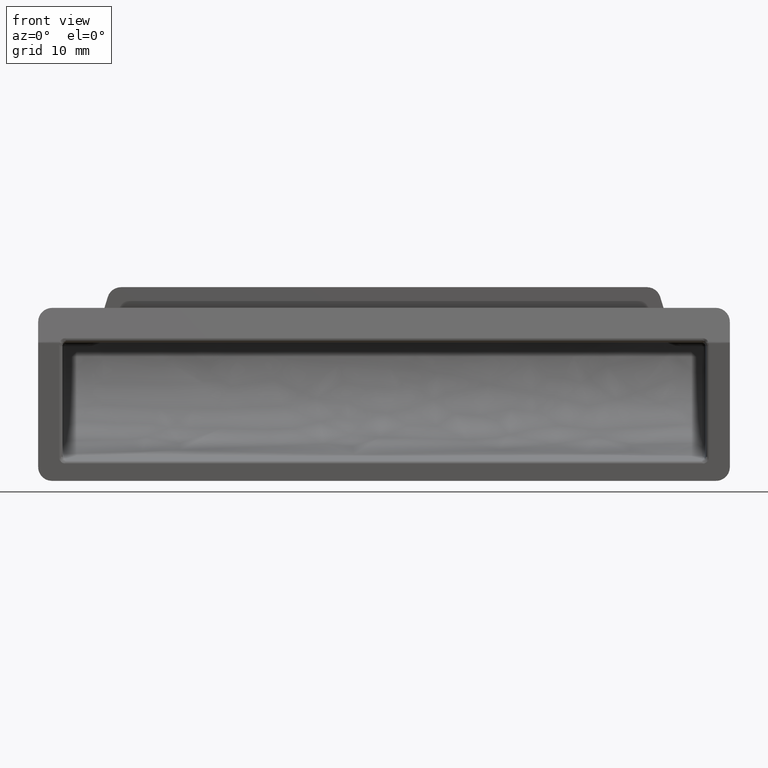
[diagram: clean part render]
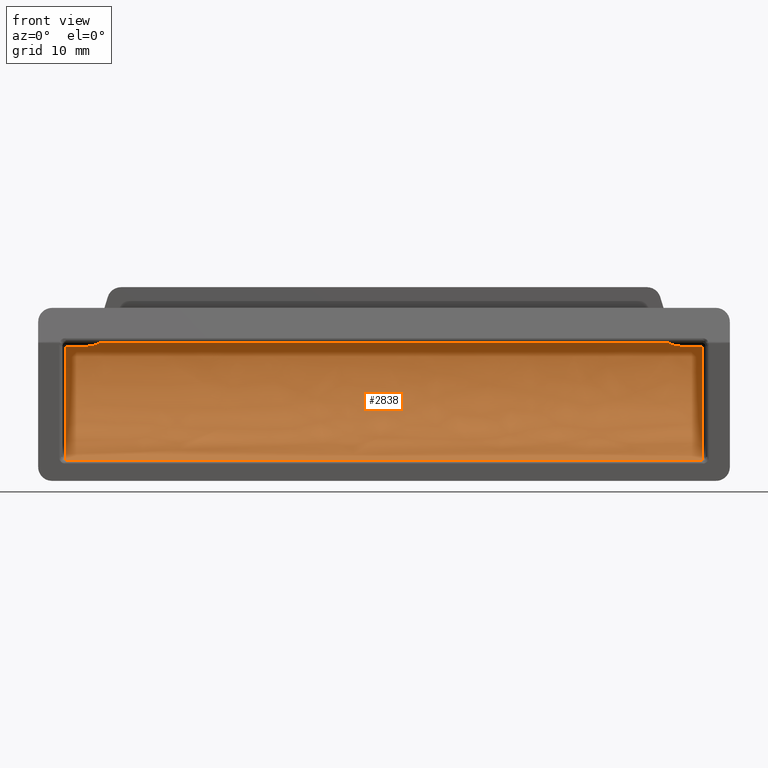
[diagram: same view with one face highlighted and labeled with its STEP entity id]
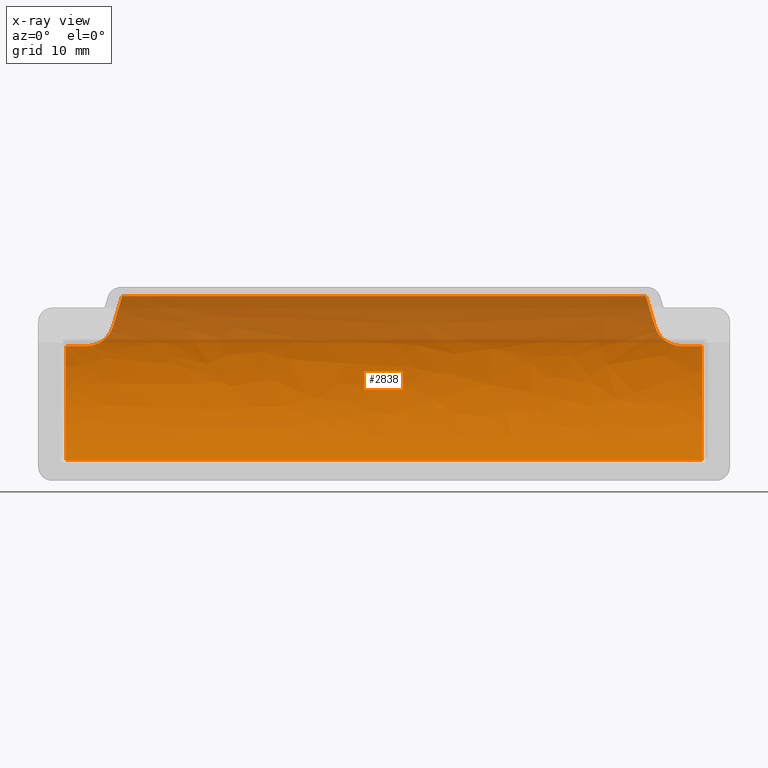
[diagram: x-ray of the same camera — body ghosted, the highlighted face saturated]
A machine part, front view. The second image highlights one B-rep face of the part: STEP entity #2838.
The next image is the same camera in x-ray: the body ghosted, the highlighted face saturated — about 25% of this face is hidden behind the body in this view.
In plain terms, the highlighted face is a freeform B-spline surface patch.
Its self-contained STEP definition (entity closure, byte-faithful):
#1513=CARTESIAN_POINT('',(37.855285732580903,14.047503000000001,-1.299999999999982));
#1514=VERTEX_POINT('',#1513);
#1515=CARTESIAN_POINT('',(39.154032939174613,14.901293931090001,-5.640166639048560));
#1516=VERTEX_POINT('',#1515);
#1517=CARTESIAN_POINT('',(37.855285732580903,14.047503000000001,-1.299999999999982));
#1518=CARTESIAN_POINT('',(38.489019937604070,14.740077138990840,-3.417819419162540));
#1519=CARTESIAN_POINT('',(39.154032939174613,14.901293931090001,-5.640166639048560));
#1527=(BOUNDED_CURVE()B_SPLINE_CURVE(2,(#1517,#1518,#1519),.UNSPECIFIED.,.F.,.U.)CURVE()GEOMETRIC_REPRESENTATION_ITEM()QUASI_UNIFORM_CURVE()RATIONAL_B_SPLINE_CURVE((1.0,0.992588916758242,1.0))REPRESENTATION_ITEM(''));
#1528=EDGE_CURVE('',#1514,#1516,#1527,.T.);
#1669=CARTESIAN_POINT('',(42.977149000000047,14.879707388753960,-8.543587641242938));
#1670=VERTEX_POINT('',#1669);
#1716=CARTESIAN_POINT('',(39.154032939174613,14.901293931090001,-5.640166639048560));
#1717=CARTESIAN_POINT('',(39.215900264160581,14.916292202772309,-5.846915371251141));
#1718=CARTESIAN_POINT('',(39.292867873220587,14.927224673107190,-6.046457104934548));
#1719=CARTESIAN_POINT('',(39.476167904555894,14.942426399752490,-6.431477032481558));
#1720=CARTESIAN_POINT('',(39.582497323092419,14.946689696257090,-6.616956923589616));
#1721=CARTESIAN_POINT('',(39.734605383048482,14.948670662017150,-6.839573958397345));
#1722=CARTESIAN_POINT('',(39.766043752677071,14.948898838488310,-6.883695265420904));
#1723=CARTESIAN_POINT('',(39.830330474875488,14.949041629379609,-6.970250281742620));
#1724=CARTESIAN_POINT('',(39.863232592493951,14.948957478229390,-7.012768329842164));
#1725=CARTESIAN_POINT('',(39.964188648826720,14.948285935737889,-7.138071556655754));
#1726=CARTESIAN_POINT('',(40.034488792488133,14.947280040406859,-7.218609316922207));
#1727=CARTESIAN_POINT('',(40.254295511813247,14.942942436983230,-7.451318528151096));
#1728=CARTESIAN_POINT('',(40.412649814333051,14.938294485427500,-7.594644352787952));
#1729=CARTESIAN_POINT('',(40.668602781584802,14.929983242713361,-7.791244968191728));
#1730=CARTESIAN_POINT('',(40.757245896361532,14.926980060277909,-7.853809339966381));
#1731=CARTESIAN_POINT('',(40.937636079217313,14.920848740480199,-7.970478611114804));
#1732=CARTESIAN_POINT('',(41.029728770665670,14.917709738604071,-8.024877071481646));
#1733=CARTESIAN_POINT('',(41.311624131045740,14.908378496375930,-8.176439650886382));
#1734=CARTESIAN_POINT('',(41.507007656109252,14.902279462734080,-8.262046914782868));
#1735=CARTESIAN_POINT('',(41.760844720995948,14.895676161118100,-8.349214620004528));
#1736=CARTESIAN_POINT('',(41.812095418922709,14.894405912661270,-8.365650041139093));
#1737=CARTESIAN_POINT('',(41.915582861671332,14.891985751589949,-8.396485519646518));
#1738=CARTESIAN_POINT('',(41.967777319366547,14.890837246976110,-8.410866919090189));
#1739=CARTESIAN_POINT('',(42.124504925014719,14.887625335512380,-8.450582167617775));
#1740=CARTESIAN_POINT('',(42.229614968028173,14.885785907485239,-8.472626121803543));
#1741=CARTESIAN_POINT('',(42.546795807237373,14.881303452610689,-8.525642884923975));
#1742=CARTESIAN_POINT('',(42.760705240573301,14.879707388753960,-8.543587641242937));
#1743=CARTESIAN_POINT('',(42.977149000000047,14.879707388753960,-8.543587641242938));
#1744=B_SPLINE_CURVE_WITH_KNOTS('',3,(#1716,#1717,#1718,#1719,#1720,#1721,#1722,#1723,#1724,#1725,#1726,#1727,#1728,#1729,#1730,#1731,#1732,#1733,#1734,#1735,#1736,#1737,#1738,#1739,#1740,#1741,#1742,#1743),.UNSPECIFIED.,.F.,.U.,(4,2,2,2,2,2,2,2,2,2,2,2,2,4),(0.0,0.125000000000005,0.250000000000010,0.281250000000009,0.312500000000009,0.375000000000008,0.500000000000010,0.562500000000012,0.625000000000015,0.750000000000019,0.781250000000018,0.812500000000017,0.875000000000012,1.0),.UNSPECIFIED.);
#1745=EDGE_CURVE('',#1516,#1670,#1744,.T.);
#1766=CARTESIAN_POINT('',(46.0,14.879707388753960,-8.543587641242938));
#1767=VERTEX_POINT('',#1766);
#1789=CARTESIAN_POINT('',(42.977149000000047,14.879707388753960,-8.543587641242938));
#1790=CARTESIAN_POINT('',(46.0,14.879707388753960,-8.543587641242938));
#1791=QUASI_UNIFORM_CURVE('',1,(#1789,#1790),.UNSPECIFIED.,.F.,.U.);
#1792=EDGE_CURVE('',#1670,#1767,#1791,.T.);
#1902=CARTESIAN_POINT('',(46.0,-0.865620170461084,-25.0));
#1903=VERTEX_POINT('',#1902);
#1943=CARTESIAN_POINT('',(46.0,14.879707388753960,-8.543587641242938));
#1944=CARTESIAN_POINT('',(46.000000000000007,13.607068575883034,-23.086630416519327));
#1945=CARTESIAN_POINT('',(46.0,-0.865620170461083,-25.0));
#1953=(BOUNDED_CURVE()B_SPLINE_CURVE(2,(#1943,#1944,#1945),.UNSPECIFIED.,.F.,.U.)CURVE()GEOMETRIC_REPRESENTATION_ITEM()QUASI_UNIFORM_CURVE()RATIONAL_B_SPLINE_CURVE((1.0,0.780060709838646,1.0))REPRESENTATION_ITEM(''));
#1954=EDGE_CURVE('',#1767,#1903,#1953,.T.);
#2026=CARTESIAN_POINT('',(-37.855285732580903,14.047503000000001,-1.299999999999982));
#2027=VERTEX_POINT('',#2026);
#2077=CARTESIAN_POINT('',(-39.154032939174947,14.901293931090100,-5.640166639049681));
#2078=VERTEX_POINT('',#2077);
#2092=CARTESIAN_POINT('',(-39.154032939174947,14.901293931090089,-5.640166639049682));
#2093=CARTESIAN_POINT('',(-38.489019933956399,14.740077138106665,-3.417819406972442));
#2094=CARTESIAN_POINT('',(-37.855285732580903,14.047503000000001,-1.299999999999982));
#2102=(BOUNDED_CURVE()B_SPLINE_CURVE(2,(#2092,#2093,#2094),.UNSPECIFIED.,.F.,.U.)CURVE()GEOMETRIC_REPRESENTATION_ITEM()QUASI_UNIFORM_CURVE()RATIONAL_B_SPLINE_CURVE((1.0,0.992588916677803,1.0))REPRESENTATION_ITEM(''));
#2103=EDGE_CURVE('',#2078,#2027,#2102,.T.);
#2216=CARTESIAN_POINT('',(-42.977149000000047,14.879707388753960,-8.543587641242938));
#2217=VERTEX_POINT('',#2216);
#2235=CARTESIAN_POINT('',(-42.977149000000047,14.879707388753960,-8.543587641242938));
#2236=CARTESIAN_POINT('',(-42.760675224813689,14.879707388753960,-8.543587641242940));
#2237=CARTESIAN_POINT('',(-42.547362474671992,14.881303086217169,-8.525640584701062));
#2238=CARTESIAN_POINT('',(-42.126759215444288,14.887231903253090,-8.455530016212025));
#2239=CARTESIAN_POINT('',(-41.919469403739328,14.891567249318390,-8.403362696808673));
#2240=CARTESIAN_POINT('',(-41.664228469983570,14.898185420534929,-8.316112408933771));
#2241=CARTESIAN_POINT('',(-41.613336438619918,14.899569354831820,-8.297532245983842));
#2242=CARTESIAN_POINT('',(-41.512899679762143,14.902409646636670,-8.258504120323449));
#2243=CARTESIAN_POINT('',(-41.463235515292702,14.903868961139461,-8.238017946636969));
#2244=CARTESIAN_POINT('',(-41.315875134893517,14.908331307771590,-8.173694906702977));
#2245=CARTESIAN_POINT('',(-41.219808403469308,14.911419164826601,-8.126998166227478));
#2246=CARTESIAN_POINT('',(-40.937985222808180,14.920743856482760,-7.975700550501274));
#2247=CARTESIAN_POINT('',(-40.758565640979867,14.927053347116781,-7.859963506938312));
#2248=CARTESIAN_POINT('',(-40.502296026115410,14.935387670471229,-7.663686862912127));
#2249=CARTESIAN_POINT('',(-40.418886536840148,14.937976523038881,-7.594284420283842));
#2250=CARTESIAN_POINT('',(-40.259351539218073,14.942449196004191,-7.450361343539656));
#2251=CARTESIAN_POINT('',(-40.182841112035383,14.944346365220440,-7.375571451628098));
#2252=CARTESIAN_POINT('',(-39.962826908028731,14.948706244420780,-7.142934174517431));
#2253=CARTESIAN_POINT('',(-39.828782388044111,14.949845758621279,-6.976869420735592));
#2254=CARTESIAN_POINT('',(-39.677078983072668,14.947933477741000,-6.755506841811507));
#2255=CARTESIAN_POINT('',(-39.647535542559361,14.947383538183820,-6.710541223571462));
#2256=CARTESIAN_POINT('',(-39.590063671746499,14.945917343301280,-6.619205678378630));
#2257=CARTESIAN_POINT('',(-39.562127723875882,14.944999687463300,-6.572812622979407));
#2258=CARTESIAN_POINT('',(-39.481409011068969,14.941679790947861,-6.432632626206953));
#2259=CARTESIAN_POINT('',(-39.431476659555983,14.938706149067739,-6.337487928269890));
#2260=CARTESIAN_POINT('',(-39.293066829785211,14.927268498299499,-6.047103107807566));
#2261=CARTESIAN_POINT('',(-39.215908330163252,14.916294158184130,-5.846942326284536));
#2262=CARTESIAN_POINT('',(-39.154032939174947,14.901293931090100,-5.640166639049680));
#2263=B_SPLINE_CURVE_WITH_KNOTS('',3,(#2235,#2236,#2237,#2238,#2239,#2240,#2241,#2242,#2243,#2244,#2245,#2246,#2247,#2248,#2249,#2250,#2251,#2252,#2253,#2254,#2255,#2256,#2257,#2258,#2259,#2260,#2261,#2262),.UNSPECIFIED.,.F.,.U.,(4,2,2,2,2,2,2,2,2,2,2,2,2,4),(0.0,0.125000000000012,0.250000000000024,0.281250000000025,0.312500000000025,0.375000000000025,0.500000000000027,0.562500000000026,0.625000000000025,0.750000000000023,0.781250000000021,0.812500000000019,0.875000000000013,1.0),.UNSPECIFIED.);
#2264=EDGE_CURVE('',#2217,#2078,#2263,.T.);
#2360=CARTESIAN_POINT('',(-46.0,14.879707388753960,-8.543587641242938));
#2361=VERTEX_POINT('',#2360);
#2379=CARTESIAN_POINT('',(-46.0,14.879707388753960,-8.543587641242938));
#2380=CARTESIAN_POINT('',(-42.977149000000047,14.879707388753960,-8.543587641242938));
#2381=QUASI_UNIFORM_CURVE('',1,(#2379,#2380),.UNSPECIFIED.,.F.,.U.);
#2382=EDGE_CURVE('',#2361,#2217,#2381,.T.);
#2466=CARTESIAN_POINT('',(-46.0,-0.865620170461084,-25.0));
#2467=VERTEX_POINT('',#2466);
#2495=CARTESIAN_POINT('',(-46.0,-0.865620170461087,-25.0));
#2496=CARTESIAN_POINT('',(-46.0,13.607068575883037,-23.086630416519334));
#2497=CARTESIAN_POINT('',(-46.0,14.879707388753960,-8.543587641242935));
#2505=(BOUNDED_CURVE()B_SPLINE_CURVE(2,(#2495,#2496,#2497),.UNSPECIFIED.,.F.,.U.)CURVE()GEOMETRIC_REPRESENTATION_ITEM()QUASI_UNIFORM_CURVE()RATIONAL_B_SPLINE_CURVE((1.0,0.780060709838646,1.0))REPRESENTATION_ITEM(''));
#2506=EDGE_CURVE('',#2467,#2361,#2505,.T.);
#2800=CARTESIAN_POINT('',(-46.0,-0.865620170461084,-25.0));
#2801=CARTESIAN_POINT('',(46.0,-0.865620170461084,-25.0));
#2802=QUASI_UNIFORM_CURVE('',1,(#2800,#2801),.UNSPECIFIED.,.F.,.U.);
#2803=EDGE_CURVE('',#2467,#1903,#2802,.T.);
#2808=CARTESIAN_POINT('',(-48.299999999999997,13.784283894800661,-0.550833884333742));
#2809=CARTESIAN_POINT('',(48.357500000000023,13.784283894800661,-0.550833884333742));
#2810=CARTESIAN_POINT('',(-48.300000000000011,22.285550147423645,-23.157425796986423));
#2811=CARTESIAN_POINT('',(48.357500000000023,22.285550147423645,-23.157425796986423));
#2812=CARTESIAN_POINT('',(-48.299999999999997,-1.788567284887646,-25.098146193768461));
#2813=CARTESIAN_POINT('',(48.357500000000023,-1.788567284887646,-25.098146193768461));
#2821=(BOUNDED_SURFACE()B_SPLINE_SURFACE(1,2,((#2808,#2810,#2812),(#2809,#2811,#2813)),.UNSPECIFIED.,.F.,.F.,.U.)B_SPLINE_SURFACE_WITH_KNOTS((2,2),(3,3),(0.0,96.657500000000027),(0.0,36.296741066289790),.UNSPECIFIED.)GEOMETRIC_REPRESENTATION_ITEM()RATIONAL_B_SPLINE_SURFACE(((1.0,0.601815023152048,1.0),(1.0,0.601815023152048,1.0)))REPRESENTATION_ITEM('')SURFACE());
#2822=ORIENTED_EDGE('',*,*,#2264,.F.);
#2823=ORIENTED_EDGE('',*,*,#2382,.F.);
#2824=ORIENTED_EDGE('',*,*,#2506,.F.);
#2825=ORIENTED_EDGE('',*,*,#2803,.T.);
#2826=ORIENTED_EDGE('',*,*,#1954,.F.);
#2827=ORIENTED_EDGE('',*,*,#1792,.F.);
#2828=ORIENTED_EDGE('',*,*,#1745,.F.);
#2829=ORIENTED_EDGE('',*,*,#1528,.F.);
#2830=CARTESIAN_POINT('',(-37.855285732580903,14.047503000000001,-1.299999999999982));
#2831=CARTESIAN_POINT('',(37.855285732580903,14.047503000000001,-1.299999999999982));
#2832=QUASI_UNIFORM_CURVE('',1,(#2830,#2831),.UNSPECIFIED.,.F.,.U.);
#2833=EDGE_CURVE('',#2027,#1514,#2832,.T.);
#2834=ORIENTED_EDGE('',*,*,#2833,.F.);
#2835=ORIENTED_EDGE('',*,*,#2103,.F.);
#2836=EDGE_LOOP('',(#2822,#2823,#2824,#2825,#2826,#2827,#2828,#2829,#2834,#2835));
#2837=FACE_OUTER_BOUND('',#2836,.T.);
#2838=ADVANCED_FACE('',(#2837),#2821,.F.);